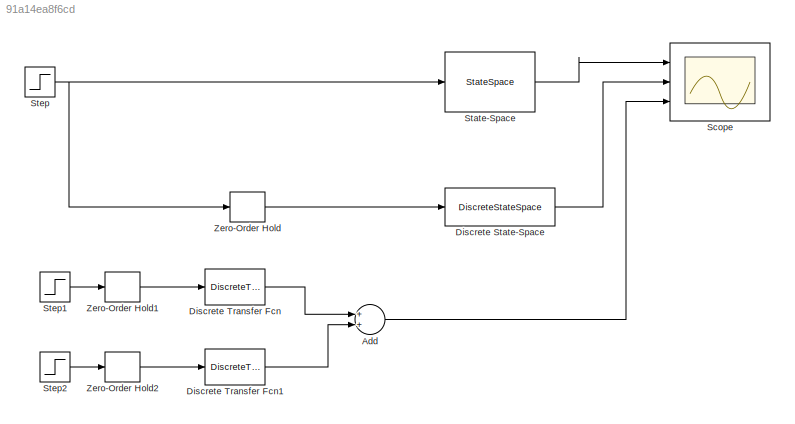
MODEL slx_91a14ea8f6cd
KIND model
CONFIG AbsTol = auto
CONFIG EnableMultiTasking = off
CONFIG FixedStep = 0.01
CONFIG MaxStep = auto
CONFIG MinStep = auto
CONFIG RelTol = 1e-3
CONFIG SampleTimeConstraint = Unconstrained
CONFIG Solver = ode4
CONFIG SolverName = ode4
CONFIG StartTime = 0.0
CONFIG StopTime = 10.0
BLOCK [Sum] Add
  InputSameDT = off
  OutDataTypeStr = Inherit: Inherit via internal rule
  Ports = [2, 1]
  SaturateOnIntegerOverflow = off
BLOCK [DiscreteStateSpace] Discrete State-Space
  A = Ad1
  B = Bd1
  C = Cd
  D = Dd
  SampleTime = -1
BLOCK [DiscreteTransferFcn] Discrete Transfer Fcn
  Denominator = den1z
  InputPortMap = u0
  Numerator = num1z
  Ports = [1, 1]
BLOCK [DiscreteTransferFcn] Discrete Transfer Fcn1
  Denominator = den2z
  InputPortMap = u0
  Numerator = num2z
  Ports = [1, 1]
BLOCK [Scope] Scope
  Floating = off
  NumInputPorts = 3
  Ports = [3]
  ScopeSpecificationString = Simulink.scopes.TimeScopeBlockCfg('CurrentConfiguration', extmgr.ConfigurationSet(extmgr.Configuration('Core','General UI',true),extmgr.Configuration('Core','Source UI',true),extmgr.Configuration('Sources','WiredSimulink',true),extmgr.Configuration('Visuals','Time Domain',true,'SerializedDisplays',{struct('MinYLimReal','0.68095','MaxYLimReal','0.73367','YLabelReal','','MinYLimMag','0.68095','MaxYL...<+1667ch>
BLOCK [StateSpace] State-Space
  A = [-1, 0, 0; -1, -2 ,-101; 1, 1, 0]
  B = [0,1;1,-1;0,0]
  C = [1,0,101]
  D = [0,0]
  InitialCondition = 0
  Ports = [1, 1]
BLOCK [Step] Step
  After = [1;-2]
  SampleTime = 0
BLOCK [Step] Step1
  SampleTime = 0
BLOCK [Step] Step2
  After = -2
  SampleTime = 0
BLOCK [ZeroOrderHold] Zero-Order Hold
  SampleTime = 0.01
BLOCK [ZeroOrderHold] Zero-Order Hold1
  SampleTime = 0.01
BLOCK [ZeroOrderHold] Zero-Order Hold2
  SampleTime = 0.01
LINE Add:1 -> Scope:3
LINE Discrete State-Space:1 -> Scope:2
LINE Discrete Transfer Fcn1:1 -> Add:2
LINE Discrete Transfer Fcn:1 -> Add:1
LINE State-Space:1 -> Scope:1
LINE Step1:1 -> Zero-Order Hold1:1
LINE Step2:1 -> Zero-Order Hold2:1
NET Step:1 -> State-Space:1, Zero-Order Hold:1
LINE Zero-Order Hold1:1 -> Discrete Transfer Fcn:1
LINE Zero-Order Hold2:1 -> Discrete Transfer Fcn1:1
LINE Zero-Order Hold:1 -> Discrete State-Space:1
note: NET lines group one-source signal fan-out (src -> all destinations, sorted); 1:1 wires keep LINE
